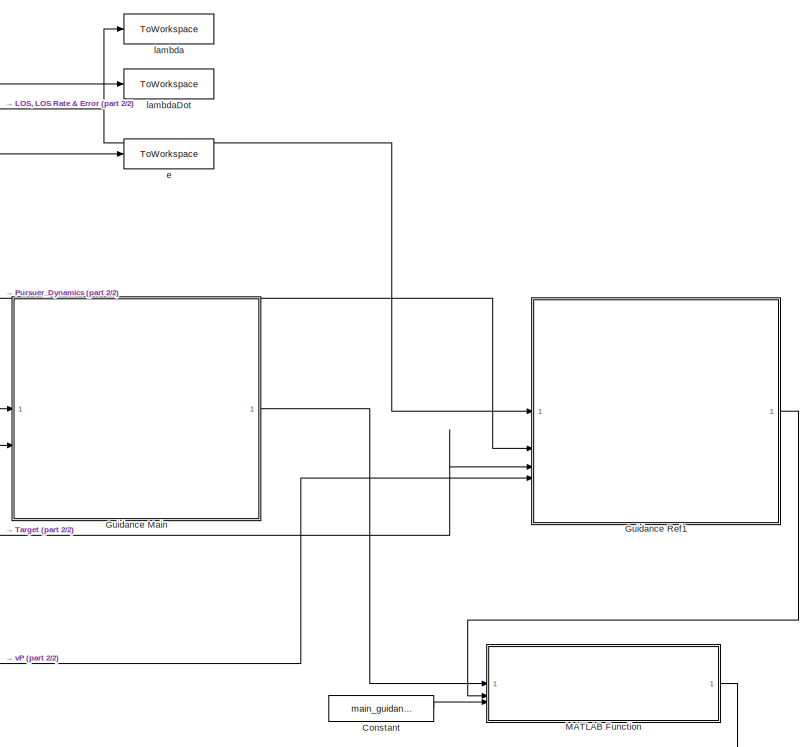
[diagram: root canvas - part 1/2, middle right region]
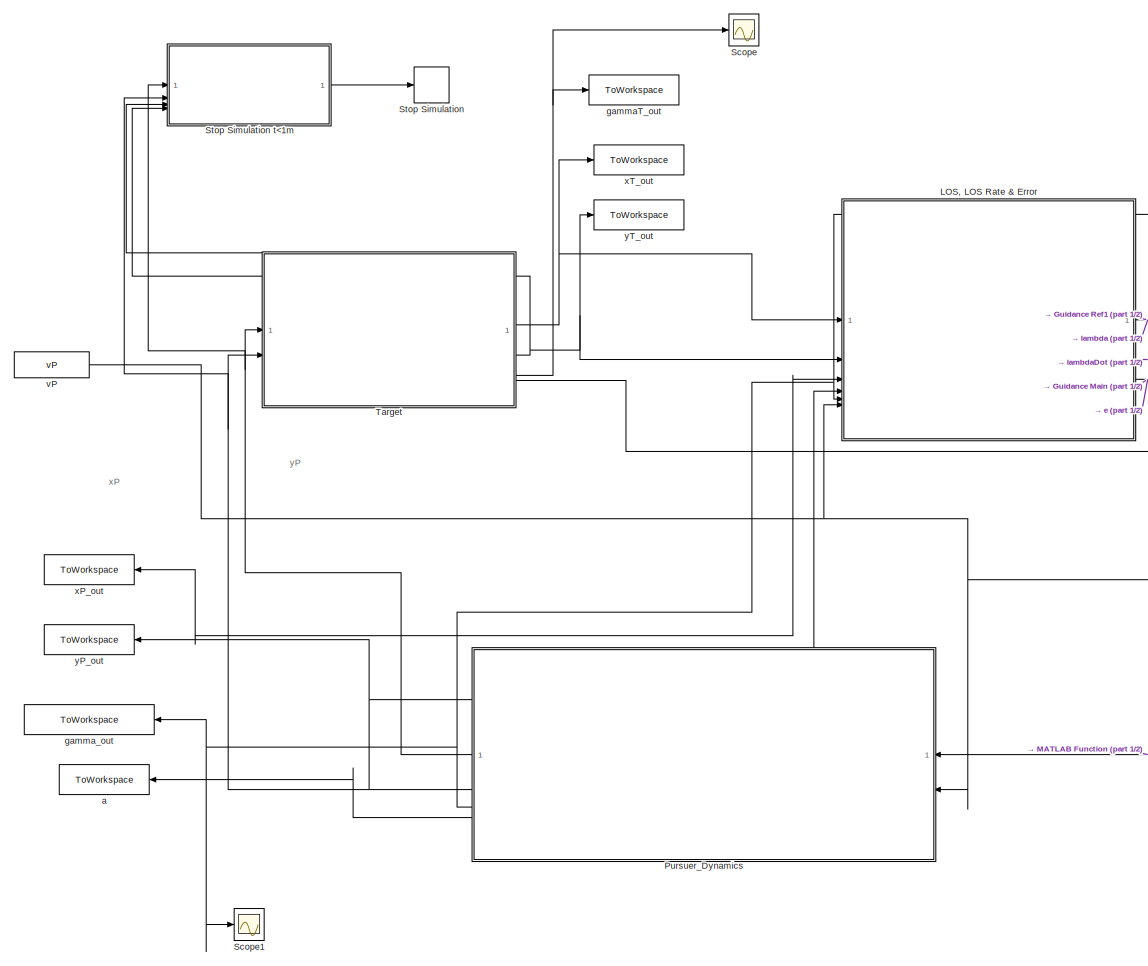
[diagram: root canvas - part 2/2, left side, full height]
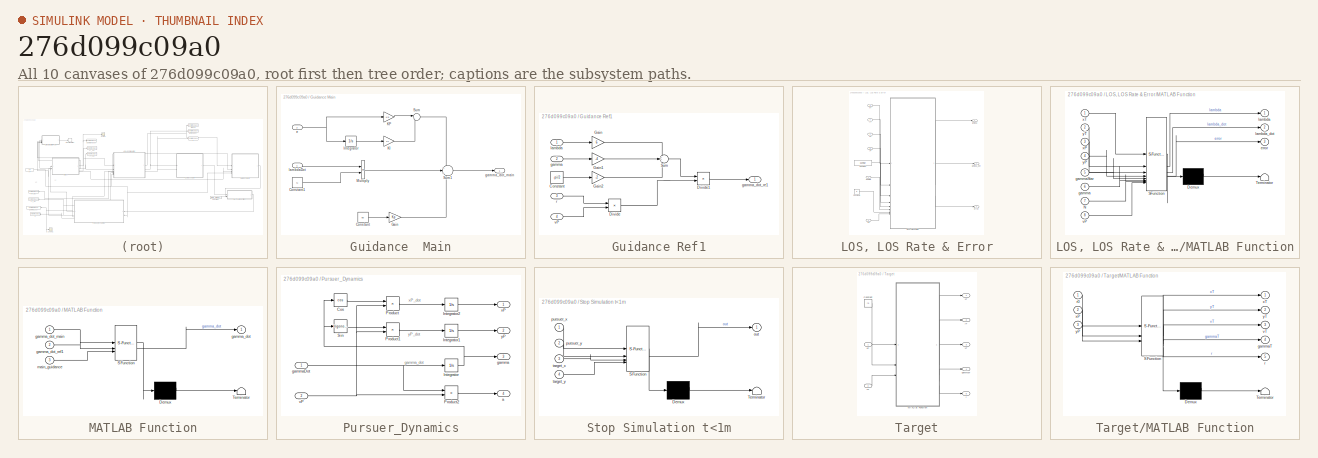
[diagram: thumbnail index - all 10 canvases of the model, root first then tree order]
MODEL slx_276d099c09a0
KIND model
CONFIG AbsTol = auto
CONFIG EnableMultiTasking = off
CONFIG FixedStep = 0.01
CONFIG MaxStep = auto
CONFIG MinStep = auto
CONFIG RelTol = 1e-3
CONFIG SampleTimeConstraint = Unconstrained
CONFIG SolverName = ode4
CONFIG StartTime = 0.0
CONFIG StopTime = tf
BLOCK [Constant] Constant
  Value = main_guidance
BLOCK [SubSystem] Guidance  Main
BLOCK [Constant] Guidance  Main/Constant
  Value = e0
BLOCK [Constant] Guidance  Main/Constant1
  Value = N
BLOCK [Gain] Guidance  Main/Gain
  Gain = Kp
BLOCK [Integrator] Guidance  Main/Integrator
  InitialCondition = e0
BLOCK [Gain] Guidance  Main/KI
  Gain = Ki
BLOCK [Gain] Guidance  Main/KP
  Gain = Kp
BLOCK [Product] Guidance  Main/Multiply
BLOCK [Sum] Guidance  Main/Sum
  Inputs = |++
BLOCK [Sum] Guidance  Main/Sum1
  Inputs = +|+|-
BLOCK [Inport] Guidance  Main/e
  Port = 2
BLOCK [Outport] Guidance  Main/gamma_dot_main
BLOCK [Inport] Guidance  Main/lambdaDot
BLOCK [SubSystem] Guidance Ref1
BLOCK [Constant] Guidance Ref1/Constant
  Value = -pi/2
BLOCK [Product] Guidance Ref1/Divide
  Inputs = */
BLOCK [Product] Guidance Ref1/Divide1
  Inputs = */
BLOCK [Gain] Guidance Ref1/Gain
  Gain = 6
BLOCK [Gain] Guidance Ref1/Gain1
  Gain = -4
BLOCK [Gain] Guidance Ref1/Gain2
  Gain = -2
BLOCK [Sum] Guidance Ref1/Sum
  Inputs = +++
BLOCK [Inport] Guidance Ref1/gamma
  Port = 2
BLOCK [Outport] Guidance Ref1/gamma_dot_re1
BLOCK [Inport] Guidance Ref1/lambda
BLOCK [Inport] Guidance Ref1/r
  Port = 3
BLOCK [Inport] Guidance Ref1/vP
  Port = 4
BLOCK [SubSystem] LOS, LOS Rate & Error
BLOCK [Constant] LOS, LOS Rate & Error/Constant
  Value = gammaf
BLOCK [Constant] LOS, LOS Rate & Error/Constant1
  Value = N
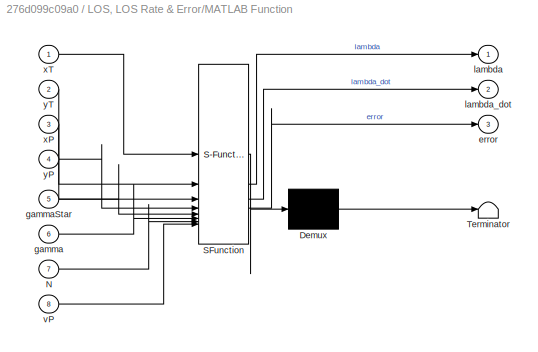
BLOCK [SubSystem] LOS, LOS Rate & Error/MATLAB Function
  ErrorFcn = Stateflow.Translate.translate
  PermitHierarchicalResolution = ExplicitOnly
  SFBlockType = MATLAB Function
  TreatAsAtomicUnit = on
BLOCK [Demux] LOS, LOS Rate & Error/MATLAB Function/ Demux 
  Outputs = 1
BLOCK [S-Function] LOS, LOS Rate & Error/MATLAB Function/ SFunction 
  EnableBusSupport = on
  FunctionName = sf_sfun
  PortCounts = [8 4]
  SFcnIsStateOwnerBlock = off
  SFunctionDeploymentMode = off
  Tag = Stateflow S-Function 1
BLOCK [Terminator] LOS, LOS Rate & Error/MATLAB Function/ Terminator 
BLOCK [Inport] LOS, LOS Rate & Error/MATLAB Function/N
  Port = 7
BLOCK [Outport] LOS, LOS Rate & Error/MATLAB Function/error
  Port = 3
BLOCK [Inport] LOS, LOS Rate & Error/MATLAB Function/gamma
  Port = 6
BLOCK [Inport] LOS, LOS Rate & Error/MATLAB Function/gammaStar
  Port = 5
BLOCK [Outport] LOS, LOS Rate & Error/MATLAB Function/lambda
BLOCK [Outport] LOS, LOS Rate & Error/MATLAB Function/lambda_dot
  Port = 2
BLOCK [Inport] LOS, LOS Rate & Error/MATLAB Function/vP
  Port = 8
BLOCK [Inport] LOS, LOS Rate & Error/MATLAB Function/xP
  Port = 3
BLOCK [Inport] LOS, LOS Rate & Error/MATLAB Function/xT
BLOCK [Inport] LOS, LOS Rate & Error/MATLAB Function/yP
  Port = 4
BLOCK [Inport] LOS, LOS Rate & Error/MATLAB Function/yT
  Port = 2
BLOCK [Outport] LOS, LOS Rate & Error/error
  Port = 3
BLOCK [Inport] LOS, LOS Rate & Error/gamma
  Port = 5
BLOCK [Outport] LOS, LOS Rate & Error/lambda
BLOCK [Outport] LOS, LOS Rate & Error/lambda_dot
  Port = 2
BLOCK [Inport] LOS, LOS Rate & Error/vP
  Port = 6
BLOCK [Inport] LOS, LOS Rate & Error/xP
  Port = 3
BLOCK [Inport] LOS, LOS Rate & Error/xT
BLOCK [Inport] LOS, LOS Rate & Error/yP
  Port = 4
BLOCK [Inport] LOS, LOS Rate & Error/yT
  Port = 2
BLOCK [SubSystem] MATLAB Function
  ErrorFcn = Stateflow.Translate.translate
  PermitHierarchicalResolution = ExplicitOnly
  SFBlockType = MATLAB Function
  TreatAsAtomicUnit = on
BLOCK [Demux] MATLAB Function/ Demux 
  Outputs = 1
BLOCK [S-Function] MATLAB Function/ SFunction 
  EnableBusSupport = on
  FunctionName = sf_sfun
  PortCounts = [3 2]
  SFcnIsStateOwnerBlock = off
  SFunctionDeploymentMode = off
  Tag = Stateflow S-Function 4
BLOCK [Terminator] MATLAB Function/ Terminator 
BLOCK [Outport] MATLAB Function/gamma_dot
BLOCK [Inport] MATLAB Function/gamma_dot_main
BLOCK [Inport] MATLAB Function/gamma_dot_ref1
  Port = 2
BLOCK [Inport] MATLAB Function/main_guidance
  Port = 3
BLOCK [SubSystem] Pursuer_Dynamics
BLOCK [Trigonometry] Pursuer_Dynamics/Cos
  Operator = cos
BLOCK [Integrator] Pursuer_Dynamics/Integrator
  InitialCondition = gamma0
BLOCK [Integrator] Pursuer_Dynamics/Integrator1
  InitialCondition = yP_initial
BLOCK [Integrator] Pursuer_Dynamics/Integrator2
  InitialCondition = xP_initial
BLOCK [Product] Pursuer_Dynamics/Product
BLOCK [Product] Pursuer_Dynamics/Product1
BLOCK [Product] Pursuer_Dynamics/Product2
BLOCK [Trigonometry] Pursuer_Dynamics/Sin
BLOCK [Outport] Pursuer_Dynamics/a
  Port = 4
BLOCK [Outport] Pursuer_Dynamics/gamma
  Port = 3
BLOCK [Inport] Pursuer_Dynamics/gammaDot
BLOCK [Inport] Pursuer_Dynamics/vP
  Port = 2
BLOCK [Outport] Pursuer_Dynamics/xP
BLOCK [Outport] Pursuer_Dynamics/yP
  Port = 2
BLOCK [Scope] Scope
  Floating = off
  NumInputPorts = 1
  ScopeSpecificationString = Simulink.scopes.TimeScopeBlockCfg('CurrentConfiguration', extmgr.ConfigurationSet(extmgr.Configuration('Core','General UI',true),extmgr.Configuration('Core','Source UI',true),extmgr.Configuration('Sources','WiredSimulink',true),extmgr.Configuration('Visuals','Time Domain',true,'SerializedDisplays',{struct('MinYLimReal','-2.5708','MaxYLimReal','-0.5708','YLabelReal','','MinYLimMag','0.00000','MaxYL...<+1418ch>
BLOCK [Scope] Scope1
  Floating = off
  NumInputPorts = 1
  ScopeSpecificationString = Simulink.scopes.TimeScopeBlockCfg('CurrentConfiguration', extmgr.ConfigurationSet(extmgr.Configuration('Core','General UI',true),extmgr.Configuration('Core','Source UI',true),extmgr.Configuration('Sources','WiredSimulink',true,'DataLoggingVariableName','ScopeData1'),extmgr.Configuration('Visuals','Time Domain',true,'SerializedDisplays',{struct('MinYLimReal','-1.79969','MaxYLimReal','0.80582','YLab...<+1466ch>
BLOCK [Stop] Stop Simulation
BLOCK [SubSystem] Stop Simulation t<1m
  ErrorFcn = Stateflow.Translate.translate
  PermitHierarchicalResolution = ExplicitOnly
  SFBlockType = MATLAB Function
  TreatAsAtomicUnit = on
BLOCK [Demux] Stop Simulation t<1m/ Demux 
  Outputs = 1
BLOCK [S-Function] Stop Simulation t<1m/ SFunction 
  EnableBusSupport = on
  FunctionName = sf_sfun
  PortCounts = [4 2]
  SFcnIsStateOwnerBlock = off
  SFunctionDeploymentMode = off
  Tag = Stateflow S-Function 3
BLOCK [Terminator] Stop Simulation t<1m/ Terminator 
BLOCK [Outport] Stop Simulation t<1m/out
BLOCK [Inport] Stop Simulation t<1m/pursuer_x
BLOCK [Inport] Stop Simulation t<1m/pursuer_y
  Port = 2
BLOCK [Inport] Stop Simulation t<1m/target_x
  Port = 3
BLOCK [Inport] Stop Simulation t<1m/target_y
  Port = 4
BLOCK [SubSystem] Target
BLOCK [Constant] Target/Constant
  Value = r0
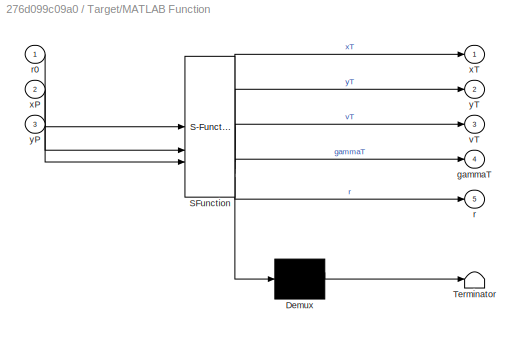
BLOCK [SubSystem] Target/MATLAB Function
  ErrorFcn = Stateflow.Translate.translate
  PermitHierarchicalResolution = ExplicitOnly
  SFBlockType = MATLAB Function
  TreatAsAtomicUnit = on
BLOCK [Demux] Target/MATLAB Function/ Demux 
  Outputs = 1
BLOCK [S-Function] Target/MATLAB Function/ SFunction 
  EnableBusSupport = on
  FunctionName = sf_sfun
  PortCounts = [3 6]
  SFcnIsStateOwnerBlock = off
  SFunctionDeploymentMode = off
  Tag = Stateflow S-Function 2
BLOCK [Terminator] Target/MATLAB Function/ Terminator 
BLOCK [Outport] Target/MATLAB Function/gammaT
  Port = 4
BLOCK [Outport] Target/MATLAB Function/r
  Port = 5
BLOCK [Inport] Target/MATLAB Function/r0
BLOCK [Outport] Target/MATLAB Function/vT
  Port = 3
BLOCK [Inport] Target/MATLAB Function/xP
  Port = 2
BLOCK [Outport] Target/MATLAB Function/xT
BLOCK [Inport] Target/MATLAB Function/yP
  Port = 3
BLOCK [Outport] Target/MATLAB Function/yT
  Port = 2
BLOCK [Outport] Target/gammaT
  Port = 4
BLOCK [Outport] Target/r
  Port = 5
BLOCK [Outport] Target/vT
  Port = 3
BLOCK [Inport] Target/xP
BLOCK [Outport] Target/xT
BLOCK [Inport] Target/yP
  Port = 2
BLOCK [Outport] Target/yT
  Port = 2
BLOCK [ToWorkspace] a
  FixptAsFi = on
  MaxDataPoints = inf
  SampleTime = -1
  Save2DSignal = 2-D array (concatenate along first dimension)
  VariableName = a_out
BLOCK [ToWorkspace] e
  FixptAsFi = on
  MaxDataPoints = inf
  SampleTime = -1
  Save2DSignal = 2-D array (concatenate along first dimension)
  VariableName = e_out
BLOCK [ToWorkspace] gammaT_out
  FixptAsFi = on
  MaxDataPoints = inf
  SampleTime = -1
  Save2DSignal = 2-D array (concatenate along first dimension)
  VariableName = gammaT_out
BLOCK [ToWorkspace] gamma_out
  FixptAsFi = on
  MaxDataPoints = inf
  SampleTime = -1
  Save2DSignal = 2-D array (concatenate along first dimension)
  VariableName = gamma_out
BLOCK [ToWorkspace] lambda
  FixptAsFi = on
  MaxDataPoints = inf
  SampleTime = -1
  Save2DSignal = 2-D array (concatenate along first dimension)
  VariableName = lambda
BLOCK [ToWorkspace] lambdaDot
  FixptAsFi = on
  MaxDataPoints = inf
  SampleTime = -1
  Save2DSignal = 2-D array (concatenate along first dimension)
  VariableName = lambdaDot
BLOCK [Constant] vP
  Value = vP
BLOCK [ToWorkspace] xP_out
  FixptAsFi = on
  MaxDataPoints = inf
  SampleTime = -1
  Save2DSignal = 2-D array (concatenate along first dimension)
  VariableName = xP_out
BLOCK [ToWorkspace] xT_out
  FixptAsFi = on
  MaxDataPoints = inf
  SampleTime = -1
  Save2DSignal = 2-D array (concatenate along first dimension)
  VariableName = xT_out
BLOCK [ToWorkspace] yP_out
  FixptAsFi = on
  MaxDataPoints = inf
  SampleTime = -1
  Save2DSignal = 2-D array (concatenate along first dimension)
  VariableName = yP_out
BLOCK [ToWorkspace] yT_out
  FixptAsFi = on
  MaxDataPoints = inf
  SampleTime = -1
  Save2DSignal = 2-D array (concatenate along first dimension)
  VariableName = yT_out
ANNOTATION (root): xP
ANNOTATION (root): yP
ANNOTATION Pursuer_Dynamics: gamma_dot
ANNOTATION Pursuer_Dynamics: xP_dot
ANNOTATION Pursuer_Dynamics: yP_dot
LINE Constant:1 -> MATLAB Function:3
LINE Guidance  Main/Constant1:1 -> Guidance  Main/Multiply:2
LINE Guidance  Main/Constant:1 -> Guidance  Main/Gain:1
LINE Guidance  Main/Gain:1 -> Guidance  Main/Sum1:3
LINE Guidance  Main/Integrator:1 -> Guidance  Main/KI:1
LINE Guidance  Main/KI:1 -> Guidance  Main/Sum:2
LINE Guidance  Main/KP:1 -> Guidance  Main/Sum:1
LINE Guidance  Main/Multiply:1 -> Guidance  Main/Sum1:2
LINE Guidance  Main/Sum1:1 -> Guidance  Main/gamma_dot_main:1
LINE Guidance  Main/Sum:1 -> Guidance  Main/Sum1:1
NET Guidance  Main/e:1 -> Guidance  Main/Integrator:1, Guidance  Main/KP:1
LINE Guidance  Main/lambdaDot:1 -> Guidance  Main/Multiply:1
LINE Guidance  Main:1 -> MATLAB Function:1
LINE Guidance Ref1/Constant:1 -> Guidance Ref1/Gain2:1
LINE Guidance Ref1/Divide1:1 -> Guidance Ref1/gamma_dot_re1:1
LINE Guidance Ref1/Divide:1 -> Guidance Ref1/Divide1:2
LINE Guidance Ref1/Gain1:1 -> Guidance Ref1/Sum:2
LINE Guidance Ref1/Gain2:1 -> Guidance Ref1/Sum:3
LINE Guidance Ref1/Gain:1 -> Guidance Ref1/Sum:1
LINE Guidance Ref1/Sum:1 -> Guidance Ref1/Divide1:1
LINE Guidance Ref1/gamma:1 -> Guidance Ref1/Gain1:1
LINE Guidance Ref1/lambda:1 -> Guidance Ref1/Gain:1
LINE Guidance Ref1/r:1 -> Guidance Ref1/Divide:1
LINE Guidance Ref1/vP:1 -> Guidance Ref1/Divide:2
LINE Guidance Ref1:1 -> MATLAB Function:2
LINE LOS, LOS Rate & Error/Constant1:1 -> LOS, LOS Rate & Error/MATLAB Function:7
LINE LOS, LOS Rate & Error/Constant:1 -> LOS, LOS Rate & Error/MATLAB Function:5
LINE LOS, LOS Rate & Error/MATLAB Function:1 -> LOS, LOS Rate & Error/lambda:1
LINE LOS, LOS Rate & Error/MATLAB Function:2 -> LOS, LOS Rate & Error/lambda_dot:1
LINE LOS, LOS Rate & Error/MATLAB Function:3 -> LOS, LOS Rate & Error/error:1
LINE LOS, LOS Rate & Error/gamma:1 -> LOS, LOS Rate & Error/MATLAB Function:6
LINE LOS, LOS Rate & Error/vP:1 -> LOS, LOS Rate & Error/MATLAB Function:8
LINE LOS, LOS Rate & Error/xP:1 -> LOS, LOS Rate & Error/MATLAB Function:3
LINE LOS, LOS Rate & Error/xT:1 -> LOS, LOS Rate & Error/MATLAB Function:1
LINE LOS, LOS Rate & Error/yP:1 -> LOS, LOS Rate & Error/MATLAB Function:4
LINE LOS, LOS Rate & Error/yT:1 -> LOS, LOS Rate & Error/MATLAB Function:2
NET LOS, LOS Rate & Error:1 -> Guidance Ref1:1, lambda:1
NET LOS, LOS Rate & Error:2 -> Guidance  Main:1, lambdaDot:1
NET LOS, LOS Rate & Error:3 -> Guidance  Main:2, e:1
LINE MATLAB Function:1 -> Pursuer_Dynamics:1
LINE Pursuer_Dynamics/Cos:1 -> Pursuer_Dynamics/Product:1
LINE Pursuer_Dynamics/Integrator1:1 -> Pursuer_Dynamics/yP:1
LINE Pursuer_Dynamics/Integrator2:1 -> Pursuer_Dynamics/xP:1
NET Pursuer_Dynamics/Integrator:1 -> Pursuer_Dynamics/Cos:1, Pursuer_Dynamics/Sin:1, Pursuer_Dynamics/gamma:1
LINE Pursuer_Dynamics/Product1:1 -> Pursuer_Dynamics/Integrator1:1
LINE Pursuer_Dynamics/Product2:1 -> Pursuer_Dynamics/a:1
LINE Pursuer_Dynamics/Product:1 -> Pursuer_Dynamics/Integrator2:1
LINE Pursuer_Dynamics/Sin:1 -> Pursuer_Dynamics/Product1:1
NET Pursuer_Dynamics/gammaDot:1 -> Pursuer_Dynamics/Integrator:1, Pursuer_Dynamics/Product2:1
NET Pursuer_Dynamics/vP:1 -> Pursuer_Dynamics/Product1:2, Pursuer_Dynamics/Product2:2, Pursuer_Dynamics/Product:2
NET Pursuer_Dynamics:1 -> LOS, LOS Rate & Error:3, Stop Simulation t<1m:1, Target:1, xP_out:1
NET Pursuer_Dynamics:2 -> LOS, LOS Rate & Error:4, Stop Simulation t<1m:2, Target:2, yP_out:1
NET Pursuer_Dynamics:3 -> Guidance Ref1:2, LOS, LOS Rate & Error:5, Scope1:1, gamma_out:1
LINE Pursuer_Dynamics:4 -> a:1
LINE Stop Simulation t<1m:1 -> Stop Simulation:1
LINE Target/Constant:1 -> Target/MATLAB Function:1
LINE Target/MATLAB Function:1 -> Target/xT:1
LINE Target/MATLAB Function:2 -> Target/yT:1
LINE Target/MATLAB Function:3 -> Target/vT:1
LINE Target/MATLAB Function:4 -> Target/gammaT:1
LINE Target/MATLAB Function:5 -> Target/r:1
LINE Target/xP:1 -> Target/MATLAB Function:2
LINE Target/yP:1 -> Target/MATLAB Function:3
NET Target:1 -> LOS, LOS Rate & Error:1, Stop Simulation t<1m:3, xT_out:1
NET Target:2 -> LOS, LOS Rate & Error:2, Stop Simulation t<1m:4, yT_out:1
NET Target:4 -> Scope:1, gammaT_out:1
LINE Target:5 -> Guidance Ref1:3
NET vP:1 -> Guidance Ref1:4, LOS, LOS Rate & Error:6, Pursuer_Dynamics:2
note: NET lines group one-source signal fan-out (src -> all destinations, sorted); 1:1 wires keep LINE
CHART LOS, LOS Rate & Error/MATLAB Function states=1 transitions=1
  STATE_LABEL 'eML_blk_kernel()'
  STATE_LABEL 'SCRIPT:\nfunction [ lambda,  lambda_dot, error] = ref1(xT, yT, xP, yP, gammaStar, gamma, N, vP)\n\n    % 1) Relative position\n    dx = xT - xP;\n    dy = yT - yP;\n    \n    % 2) Range\n    r  = hypot(dx,dy);\n\n    % 3) LOS angle\n    lambda = atan2(dy, dx);\n    \n    % 4) Error term from the paper\n    error = N*lambda - gamma - (N-1)*gammaStar;\n    \n    % 5) Pursuer Velecities\n    vPx = cos(gamma)*vP;\n    ...<+293ch>'
CHART Target/MATLAB Function states=1 transitions=1
  STATE_LABEL 'eML_blk_kernel()'
  STATE_LABEL 'SCRIPT:\nfunction [xT, yT, vT, gammaT, r] = targetBlock(r0, xP, yP) \n    \n    xT = r0;          \n    yT = 0;\n    vT = 0;           \n    gammaT = -pi/2;\n    r = hypot(xT - xP, yT - yP);              \n\nend\n\n    '
CHART Stop Simulation t<1m states=1 transitions=1
  STATE_LABEL 'eML_blk_kernel()'
  STATE_LABEL "SCRIPT:\nfunction out = fcn(pursuer_x, pursuer_y, target_x, target_y)\n    % disp('pursuer_x:');\n    % disp(pursuer_x);\n    % disp('pursuer_y:');\n    % disp(pursuer_y);\n    % disp('target_x:');\n    % disp(target_x);\n    % disp('target_y:');\n    % disp(target_y);\n    % \n    range = sqrt(complex((target_x - pursuer_x)^2 + (target_y - pursuer_y)^2));\n    % disp('range:')\n    % disp(range)\n    % range =...<+95ch>"
CHART MATLAB Function states=1 transitions=1
  STATE_LABEL 'eML_blk_kernel()'
  STATE_LABEL "SCRIPT:\nfunction gamma_dot = fcn(gamma_dot_main, gamma_dot_ref1, main_guidance)\n    \n    if main_guidance== 0\n        gamma_dot = gamma_dot_ref1;\n        disp('Reference 1 guidance law is engaged')\n    else \n        gamma_dot = gamma_dot_main;\n        disp( 'main guidance law is engaged')\n    end\nend\n\n\n"
CHART  states=0 transitions=0
CHART  states=0 transitions=0
CHART  states=0 transitions=0
CHART  states=0 transitions=0
